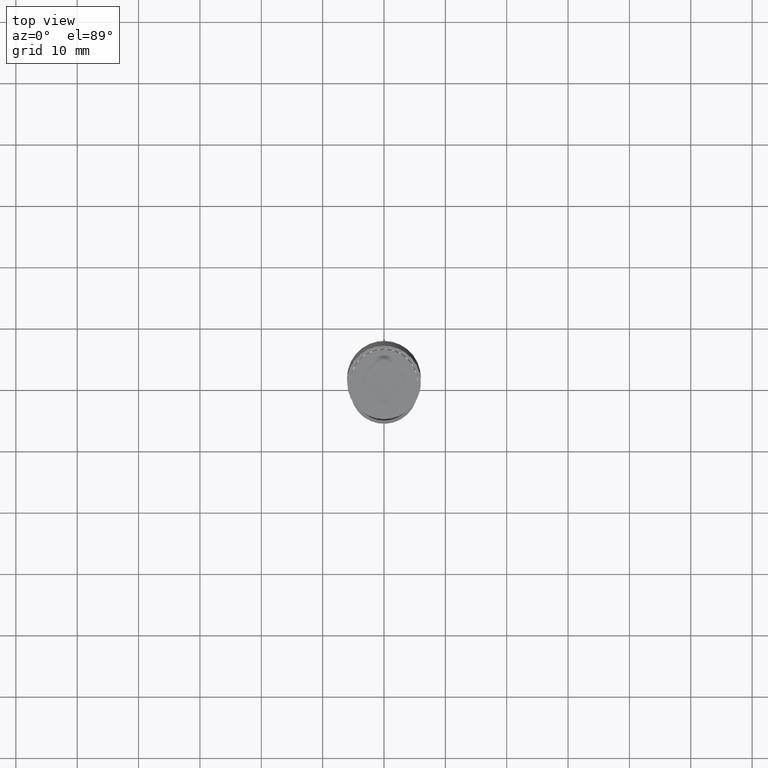
[diagram: clean part render]
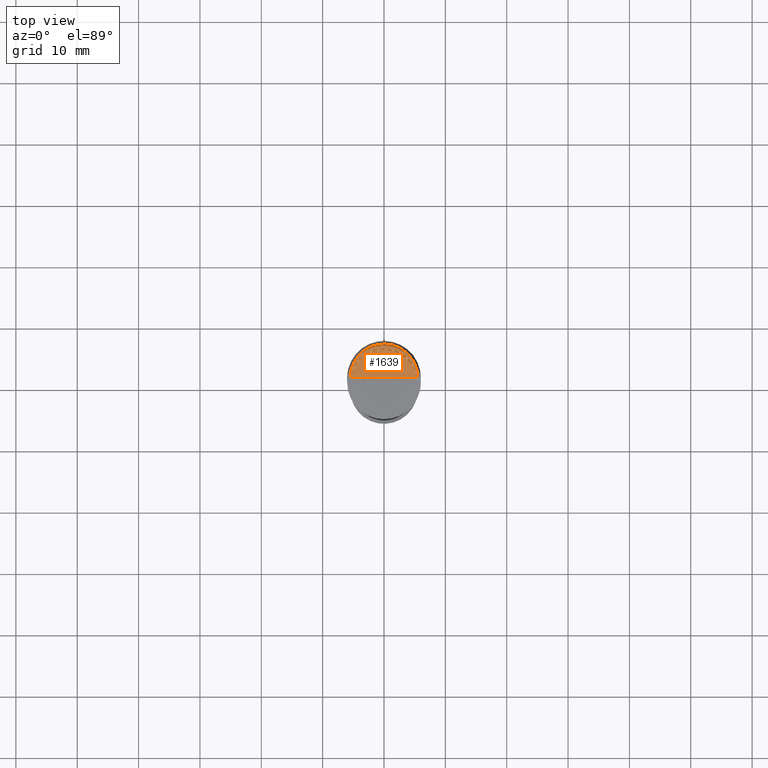
[diagram: same view with one face highlighted and labeled with its STEP entity id]
A machine part, top view. The second image highlights one B-rep face of the part: STEP entity #1639.
In plain terms, the highlighted face is a freeform B-spline surface patch.
Its self-contained STEP definition (entity closure, byte-faithful):
#1374=CARTESIAN_POINT('',(5.5,0.0,45.0));
#1375=CARTESIAN_POINT('',(5.5,5.5,45.0));
#1376=CARTESIAN_POINT('',(0.0,5.5,45.0));
#1377=CARTESIAN_POINT('',(-5.5,5.5,45.0));
#1378=CARTESIAN_POINT('',(-5.5,0.0,45.0));
#1379=CARTESIAN_POINT('',(0.0,0.0,45.0));
#1624=(
BOUNDED_SURFACE()
B_SPLINE_SURFACE(1,2,(
(#1374,#1375,#1376,#1377,#1378),
(#1379,#1379,#1379,#1379,#1379)
), .UNSPECIFIED.,.F.,.F.,.F.)
B_SPLINE_SURFACE_WITH_KNOTS((2,2),(3,2,3),(
0.0,1.0),(
0.0,0.5,1.0), .UNSPECIFIED.)
GEOMETRIC_REPRESENTATION_ITEM()
RATIONAL_B_SPLINE_SURFACE(((1.0,0.707106781187,1.0,0.707106781187,1.0),
(1.0,0.707106781187,1.0,0.707106781187,1.0)
))
REPRESENTATION_ITEM('')
SURFACE()
);
#1625=(
BOUNDED_CURVE()
B_SPLINE_CURVE(2,(#1378,#1377,#1376,#1375,#1374),.UNSPECIFIED.,.F.,.F.)
B_SPLINE_CURVE_WITH_KNOTS((3,2,3),
(0.0,0.5,1.0),.UNSPECIFIED.)
CURVE()
GEOMETRIC_REPRESENTATION_ITEM()
RATIONAL_B_SPLINE_CURVE((1.0,0.707106781187,1.0,0.707106781187,1.0))
REPRESENTATION_ITEM('')
);
#1626=(
BOUNDED_CURVE()
B_SPLINE_CURVE(1,(#1374,#1379),.UNSPECIFIED.,.F.,.F.)
B_SPLINE_CURVE_WITH_KNOTS((2,2),
(0.0,1.0),.UNSPECIFIED.)
CURVE()
GEOMETRIC_REPRESENTATION_ITEM()
RATIONAL_B_SPLINE_CURVE((1.0,1.0))
REPRESENTATION_ITEM('')
);
#1627=(
BOUNDED_CURVE()
B_SPLINE_CURVE(1,(#1379,#1378),.UNSPECIFIED.,.F.,.F.)
B_SPLINE_CURVE_WITH_KNOTS((2,2),
(0.0,1.0),.UNSPECIFIED.)
CURVE()
GEOMETRIC_REPRESENTATION_ITEM()
RATIONAL_B_SPLINE_CURVE((1.0,1.0))
REPRESENTATION_ITEM('')
);
#1628=VERTEX_POINT('',#1374);
#1629=VERTEX_POINT('',#1378);
#1630=VERTEX_POINT('',#1379);
#1631=EDGE_CURVE('',#1629,#1628,#1625,.T.);
#1632=EDGE_CURVE('',#1628,#1630,#1626,.T.);
#1633=EDGE_CURVE('',#1630,#1629,#1627,.T.);
#1634=ORIENTED_EDGE('',*,*,#1631,.T.);
#1635=ORIENTED_EDGE('',*,*,#1632,.T.);
#1636=ORIENTED_EDGE('',*,*,#1633,.T.);
#1637=EDGE_LOOP('',(#1634,#1635,#1636));
#1638=FACE_OUTER_BOUND('',#1637,.T.);
#1639=ADVANCED_FACE('',(#1638),#1624,.T.);